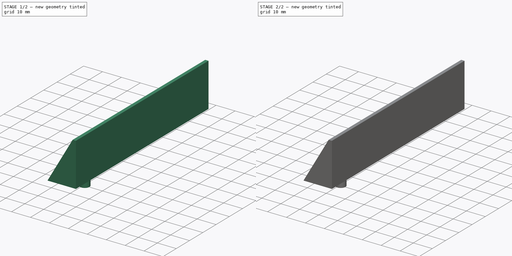
[diagram: build sequence overview — one tinted view per stage of 2, left to right]
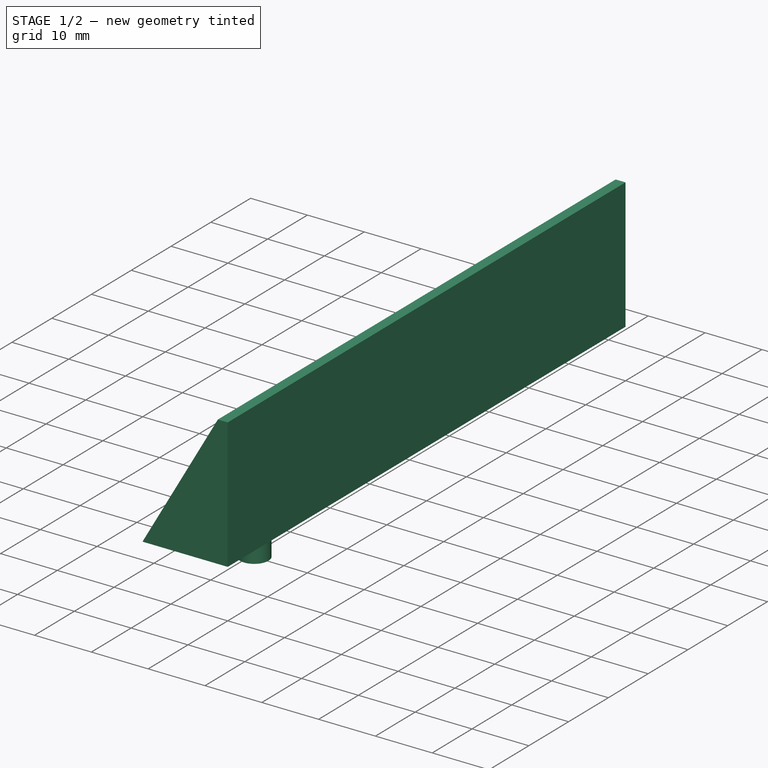
[diagram: stage 1 of 2 — iso view after this stage's code; geometry added in this stage tinted green]
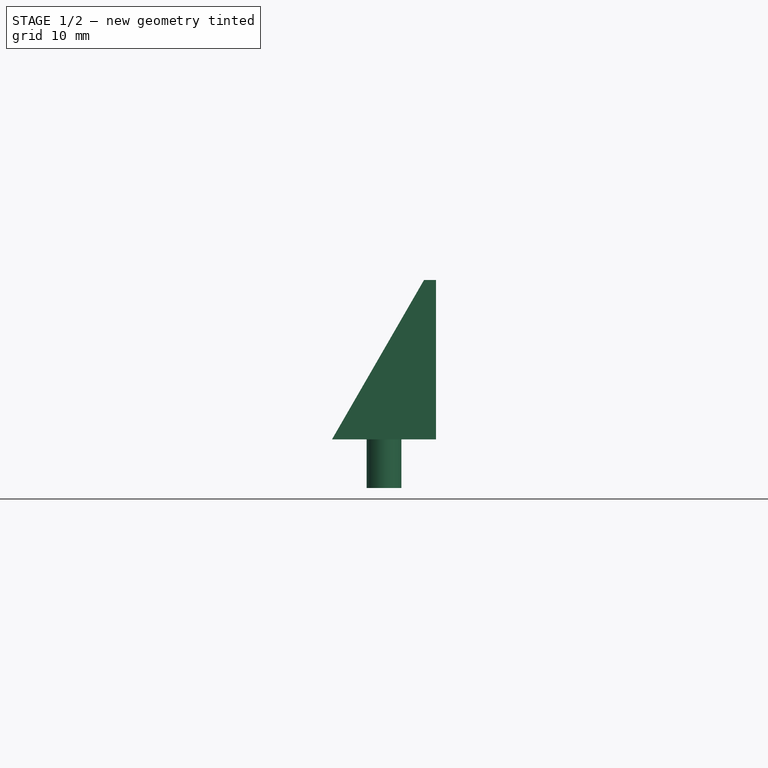
[diagram: stage 1 of 2 — front view after this stage's code; geometry added in this stage tinted green]
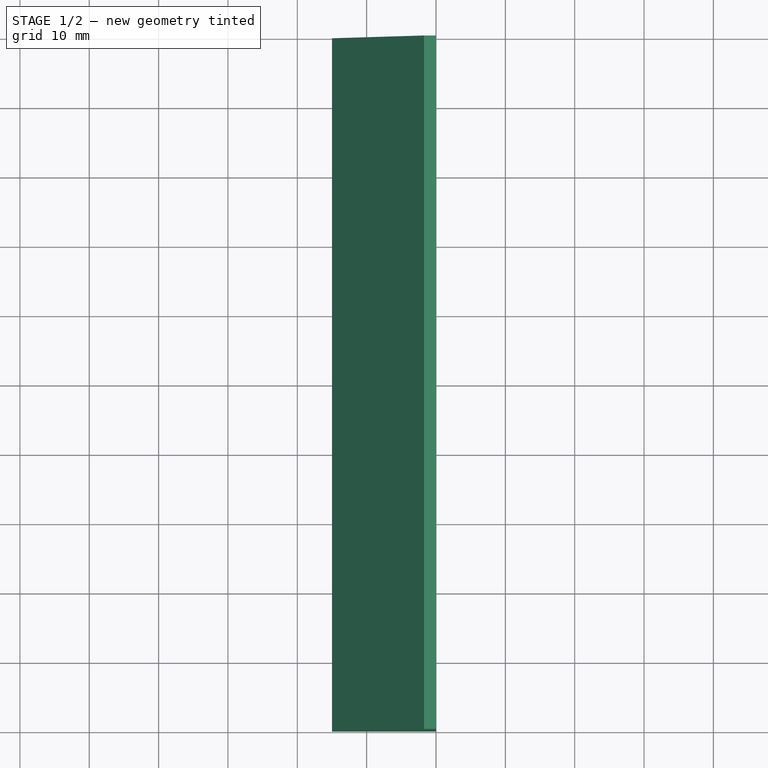
[diagram: stage 1 of 2 — top view after this stage's code; geometry added in this stage tinted green]
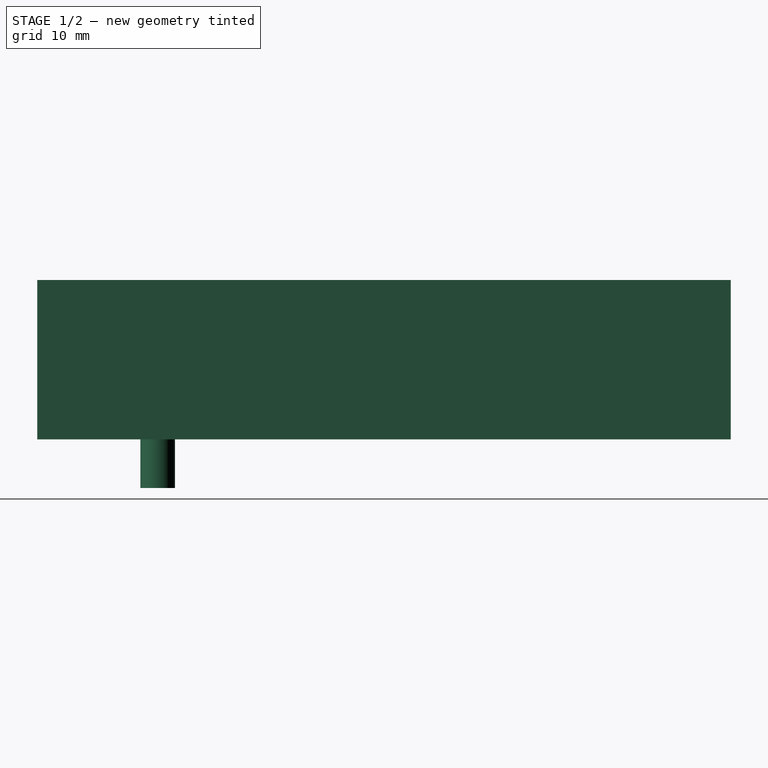
[diagram: stage 1 of 2 — right view after this stage's code; geometry added in this stage tinted green]
FCSTD DOCUMENT  (FreeCAD 1.0R39319 (Git))
Label: scorpius_part
License: All rights reserved
LicenseURL: https://en.wikipedia.org/wiki/All_rights_reserved
objects: Sketcher::SketchObject×3, PartDesign::Pad×2, PartDesign::Plane×1, PartDesign::Pocket×1, PartDesign::Body×1
note: 17 computed .brp shape members not serialized (recipe doc carries the construction recipe); baked Part::Feature solids carry a one-line shape summary decoded from their .brp

FEATURE [Sketcher::SketchObject] Sketch  label="Profil"
  ArcFitTolerance = 1e-06
  AttachmentSupport = -> [XZ_Plane]
  FullyConstrained = true
  MakeInternals = false
  MapMode = 5
  Placement = pos=(0,0,0) rot=(1,0,0;1.5708rad)
  expr: .Constraints.Base = href(<<Body>>.Base) * 0.5
  expr: .Constraints.Side = 2 * .Constraints.Base
  sketch-geometry (5):
    g0: LineSegment StartX=0 StartY=0 StartZ=0 EndX=0 EndY=22.9808 EndZ=0
    g1: LineSegment StartX=0 StartY=22.9808 StartZ=0 EndX=-1.73205 EndY=22.9808 EndZ=0
    g2: LineSegment StartX=-1.73205 StartY=22.9808 StartZ=0 EndX=-15 EndY=0 EndZ=0
    g3: LineSegment StartX=-15 StartY=0 StartZ=0 EndX=0 EndY=0 EndZ=0
    g4: LineSegment [constr] StartX=-15 StartY=0 StartZ=0 EndX=0 EndY=25.9808 EndZ=0
  constraints (15):
    c: Coincident(g-1,g0)
    c: PointOnObject(g0,g-2)
    c: Coincident(g0,g1)
    c: Coincident(g1,g2)
    c: PointOnObject(g2,g-1)
    c: Coincident(g2,g3)
    c: Coincident(g3,g0)
    c: Distance(g3) = 15  'Base'
    c: Coincident(g4,g2)
    c: PointOnObject(g4,g-2)
    c: Distance(g4) = 30  'Side'
    c: DistanceY(g0,g4) = 3  'Cut'
    c: Horizontal(g1)
    c: PointOnObject(g1,g4)
    c: Distance(g1,g2) = 26.5359  'SideCut'
FEATURE [PartDesign::Pad] Pad  label="Corp"
  Direction = (0,-1,2e-16)
  Length = 100
  Length2 = 10
  Midplane = true
  Placement = pos=(0,0,0) rot=(1,0,0;1.5708rad)
  Profile = -> Sketch
  ReferenceAxis = -> Sketch [N_Axis]
  Refine = true
  Suppressed = false
  Type = 0
FEATURE [PartDesign::Plane] DatumPlane
  AttachmentSupport = -> [Pad]
  Length = 60
  MapMode = 5
  Placement = pos=(0,0,-2e-16) rot=(1,0,0;3.14159rad)
  ResizeMode = 0
  Width = 60
FEATURE [Sketcher::SketchObject] Sketch001
  ArcFitTolerance = 1e-06
  AttachmentSupport = -> [DatumPlane]
  ExternalGeometry = -> [Pad]
  FullyConstrained = true
  MakeInternals = false
  MapMode = 5
  Placement = pos=(0,0,-2e-16) rot=(1,0,0;3.14159rad)
  expr: Constraints[14] = href(<<Body>>.Base)
  expr: Constraints[19] = acos(1 / 3)
  expr: Constraints[25] = <<Profil>>.Constraints.SideCut
  sketch-geometry (15):
    g0: LineSegment [constr] StartX=-15 StartY=21.2132 StartZ=0 EndX=15 EndY=10.6066 EndZ=0
    g1: LineSegment [constr] StartX=15 StartY=10.6066 StartZ=0 EndX=15 EndY=-21.2132 EndZ=0
    g2: LineSegment [constr] StartX=15 StartY=-21.2132 StartZ=0 EndX=-15 EndY=-10.6066 EndZ=0
    g3: LineSegment [constr] StartX=-15 StartY=-10.6066 StartZ=0 EndX=-15 EndY=21.2132 EndZ=0
    g4: LineSegment [constr] StartX=-15 StartY=-10.6066 StartZ=0 EndX=15 EndY=10.6066 EndZ=0
    g5: LineSegment [constr] StartX=-15 StartY=-10.6066 StartZ=0 EndX=15 EndY=-10.6066 EndZ=0
    g6: GeomPoint [constr] X=15 Y=-10.6066 Z=0
    g7: GeomPoint [constr] X=1.8e-15 Y=15.9099 Z=0
    g8: LineSegment [constr] StartX=-15 StartY=49.3588 StartZ=0 EndX=0 EndY=44.0555 EndZ=0
    g9: LineSegment [constr] StartX=-15 StartY=49.3588 StartZ=0 EndX=-23.8453 EndY=24.3405 EndZ=0
    g10: LineSegment [constr] StartX=-15 StartY=49.3588 StartZ=0 EndX=1.8e-15 EndY=15.9099 EndZ=0
    g11: LineSegment [constr] StartX=0 StartY=44.0555 StartZ=0 EndX=-15 EndY=21.2132 EndZ=0
    g12: GeomPoint [constr] X=-7.5 Y=32.6343 Z=0
    g13: Circle CenterX=-7.5 CenterY=32.6343 CenterZ=0 NormalX=0 NormalY=0 NormalZ=1 AngleXU=0 Radius=2.5
    g14: LineSegment [constr] StartX=1.8e-15 StartY=15.9099 StartZ=0 EndX=-15 EndY=15.9099 EndZ=0
  constraints (40):
    c: PointOnObject(g0,g-3)
    c: Vertical(g1)
    c: Coincident(g2,g1)
    c: PointOnObject(g2,g-3)
    c: Coincident(g3,g2)
    c: Coincident(g3,g0)
    c: Equal(g0,g1)
    c: Parallel(g0,g2)
    c: Coincident(g4,g2)
    c: Coincident(g4,g0)
    c: PointOnObject(g-1,g4)
    c: Coincident(g1,g0)
    c: Coincident(g5,g2)
    c: Horizontal(g5)
    c: Distance(g5) = 30
    c: Distance(g-4) = 100
    c: PointOnObject(g6,g1)
    c: Coincident(g5,g6)
    c: Symmetric(g0,g0,g7)
    c: Angle(g1,g2) = 1.23096
    c: PointOnObject(g8,g-3)
    c: PointOnObject(g8,g-4)
    c: Parallel(g0,g8)
    c: PointOnObject(g9,g0)
    c: Perpendicular(g9,g8)
    c: Distance(g9) = 26.5359
    c: Coincident(g8,g9)
    c: Coincident(g10,g8)
    c: Coincident(g10,g7)
    c: Coincident(g11,g8)
    c: PointOnObject(g12,g11)
    c: PointOnObject(g12,g10)
    c: Diameter(g13) = 5
    c: Coincident(g13,g12)
    c: Coincident(g11,g0)
    c: Distance(g3) = 31.8198  'Hauteur'
    c: Coincident(g14,g7)
    c: PointOnObject(g14,g3)
    c: Horizontal(g14)
    c: Distance(g0,g14) = 5.3033  'PositionRefTrou'
FEATURE [PartDesign::Pad] Pad001
  BaseFeature = -> Pad
  Direction = (0,0,-1)
  Length = 7
  Length2 = 10
  Placement = pos=(0,0,0) rot=(1,0,0;1.5708rad)
  Profile = -> Sketch001
  ReferenceAxis = -> Sketch001 [N_Axis]
  Refine = true
  Suppressed = false
  Type = 0
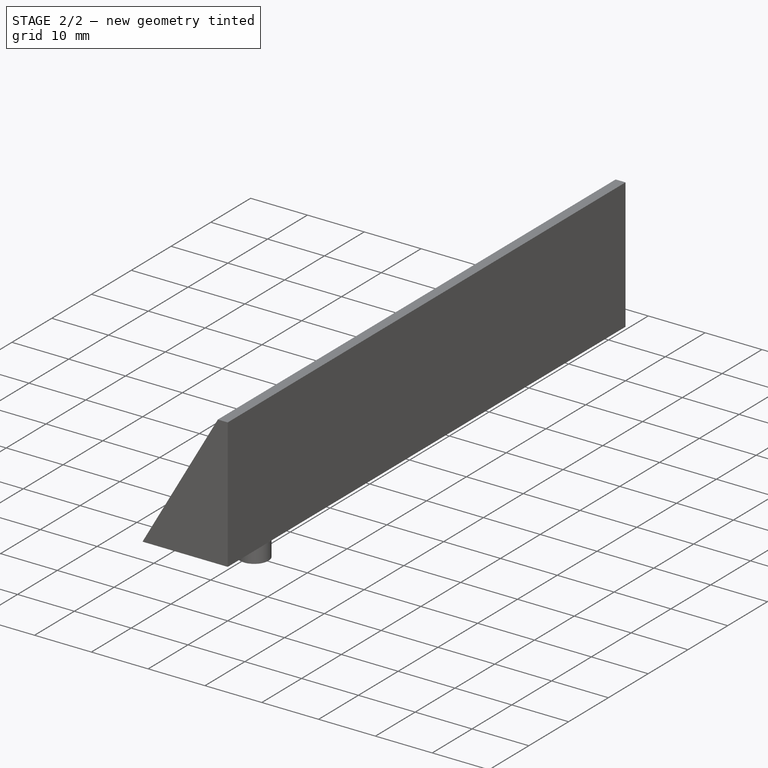
[diagram: stage 2 of 2 — iso view after this stage's code; geometry added in this stage tinted green]
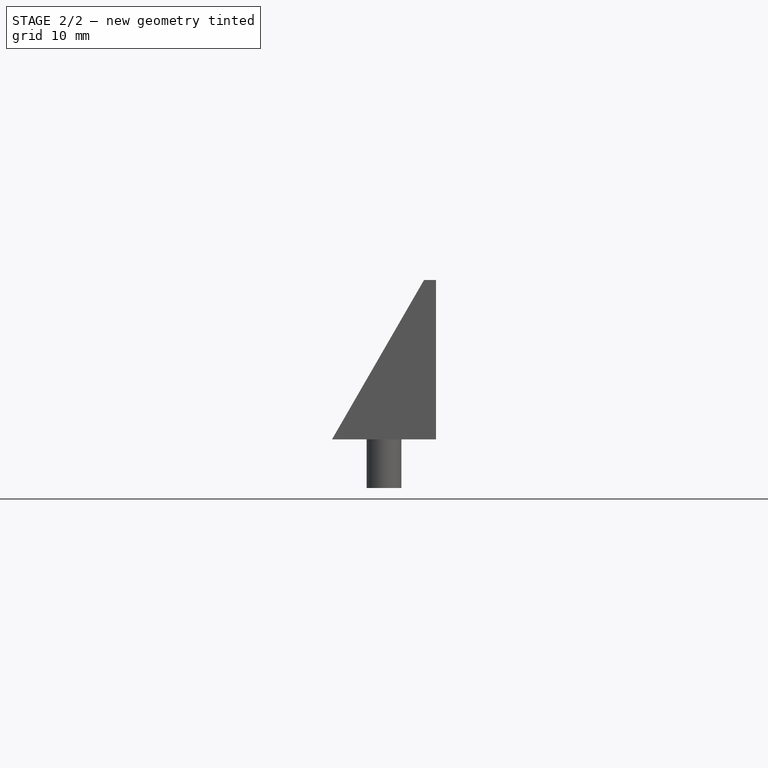
[diagram: stage 2 of 2 — front view after this stage's code; geometry added in this stage tinted green]
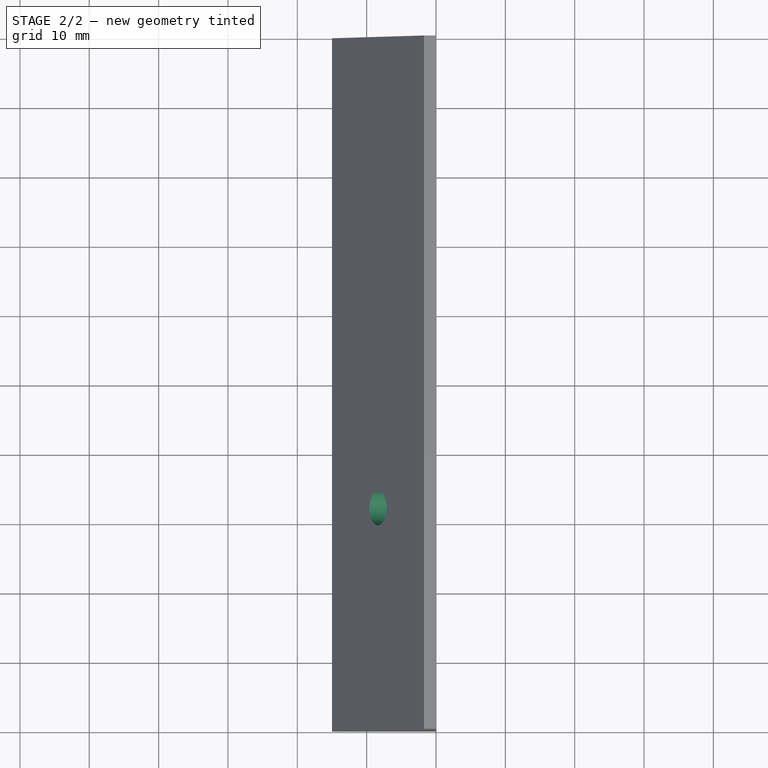
[diagram: stage 2 of 2 — top view after this stage's code; geometry added in this stage tinted green]
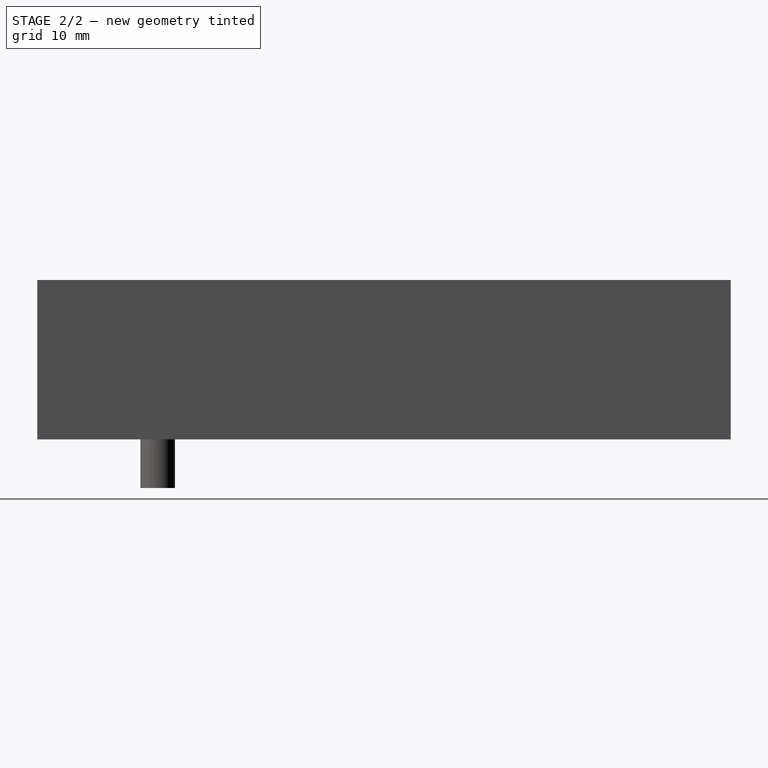
[diagram: stage 2 of 2 — right view after this stage's code; geometry added in this stage tinted green]
FEATURE [Sketcher::SketchObject] Sketch002
  ArcFitTolerance = 1e-06
  AttachmentSupport = -> [Pad001]
  ExternalGeometry = -> [Pad001]
  FullyConstrained = true
  MakeInternals = false
  MapMode = 5
  Placement = pos=(-11.25,2.9e-15,6.49519) rot=(-0.5,0,0.866025;3.14159rad)
  expr: Constraints[12] = href(<<Body>>.Base) * 0.5
  expr: Constraints[21] = <<Sketch001>>.Constraints.PositionRefTrou
  expr: Constraints[28] = acos(1 / 3)
  sketch-geometry (13):
    g0: GeomPoint [constr] X=7.5 Y=5.3033 Z=0
    g1: LineSegment [constr] StartX=7.5 StartY=5.3033 StartZ=0 EndX=-19.0359 EndY=14.6852 EndZ=0
    g2: LineSegment [constr] StartX=-19.0359 StartY=14.6852 StartZ=0 EndX=-19.0359 EndY=30.5951 EndZ=0
    g3: LineSegment [constr] StartX=-19.0359 StartY=30.5951 StartZ=0 EndX=7.5 EndY=21.2132 EndZ=0
    g4: LineSegment [constr] StartX=7.5 StartY=21.2132 StartZ=0 EndX=7.5 EndY=5.3033 EndZ=0
    g5: LineSegment [constr] StartX=7.5 StartY=21.2132 StartZ=0 EndX=2.5 EndY=7.07107 EndZ=0
    g6: LineSegment [constr] StartX=7.5 StartY=21.2132 StartZ=0 EndX=-19.0359 EndY=14.6852 EndZ=0
    g7: GeomPoint [constr] X=-5.76795 Y=17.9492 Z=0
    g8: Circle CenterX=-5.76795 CenterY=17.9492 CenterZ=0 NormalX=0 NormalY=0 NormalZ=1 AngleXU=0 Radius=2.5
    g9: GeomPoint X=7.5 Y=5.3033 Z=0
    g10: GeomPoint X=7.5 Y=-1.9e-15 Z=0
    g11: LineSegment [constr] StartX=-19.0359 StartY=30.5951 StartZ=0 EndX=7.5 EndY=5.3033 EndZ=0
    g12: LineSegment [constr] StartX=7.5 StartY=21.2132 StartZ=0 EndX=7.5 EndY=5.3033 EndZ=0
  constraints (29):
    c: Coincident(g1,g0)
    c: PointOnObject(g1,g-4)
    c: Coincident(g1,g2)
    c: PointOnObject(g2,g-4)
    c: Coincident(g2,g3)
    c: PointOnObject(g3,g-3)
    c: Coincident(g3,g4)
    c: Coincident(g4,g0)
    c: Parallel(g3,g1)
    c: Coincident(g5,g3)
    c: PointOnObject(g5,g1)
    c: Perpendicular(g1,g5)
    c: Distance(g5) = 15
    c: Coincident(g6,g3)
    c: Coincident(g6,g1)
    c: PointOnObject(g7,g6)
    c: Diameter(g8) = 5
    c: Coincident(g8,g7)
    c: PointOnObject(g9,g-3)
    c: Symmetric(g-3,g-3,g10)
    c: DistanceY(g-3,g-3) = 100
    c: DistanceY(g10,g9) = 5.3033
    c: Coincident(g0,g9)
    c: Coincident(g11,g2)
    c: Coincident(g11,g0)
    c: PointOnObject(g7,g11)
    c: Coincident(g12,g3)
    c: Coincident(g12,g0)
    c: Angle(g2,g3) = 1.23096
FEATURE [PartDesign::Pocket] Pocket
  BaseFeature = -> Pad001
  Direction = (0.866025,0,-0.5)
  Length = 7
  Length2 = 5
  Placement = pos=(0,0,0) rot=(1,0,0;1.5708rad)
  Profile = -> Sketch002
  ReferenceAxis = -> Sketch002 [N_Axis]
  Refine = true
  Suppressed = false
  Type = 0
FEATURE [PartDesign::Body] Body
  AllowCompound = false
  Base = 30
  Group = -> [Sketch,Pad,DatumPlane,Sketch001,Pad001,Sketch002,Pocket]
  Origin = -> Origin
  Tip = -> Pocket
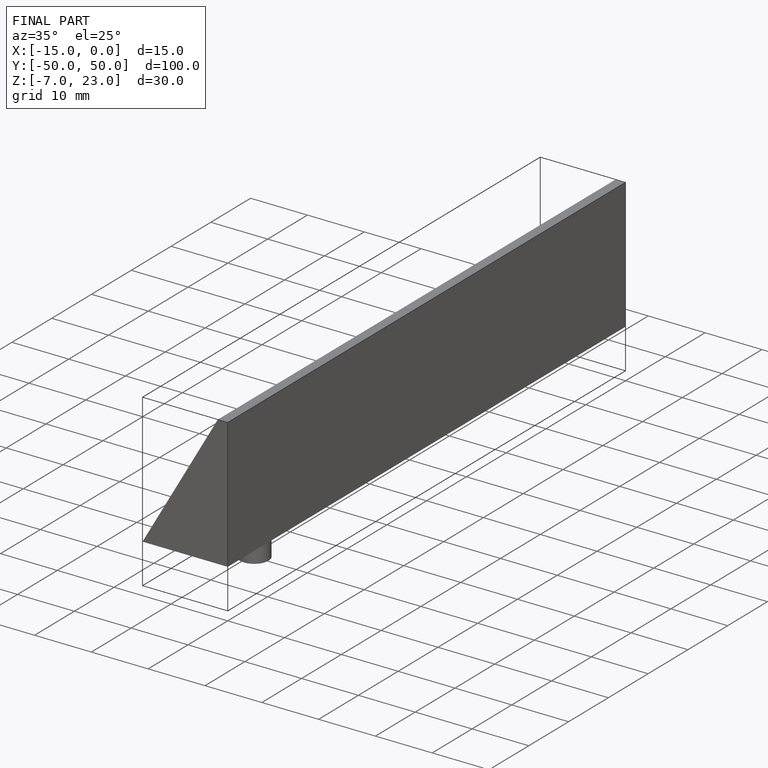
[diagram: finished part — iso view with bounding-box wireframe]
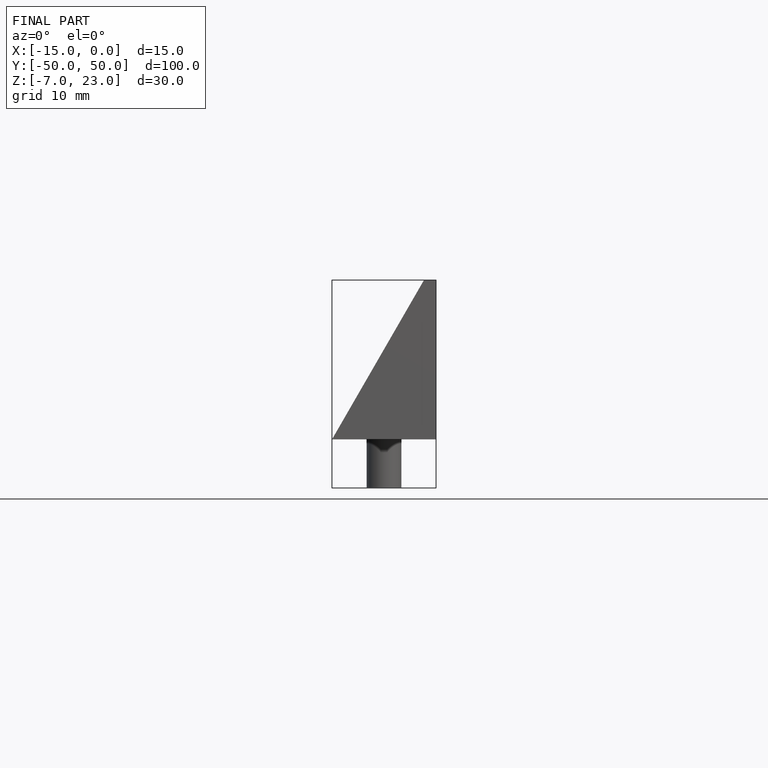
[diagram: finished part — front view with bounding-box wireframe]
